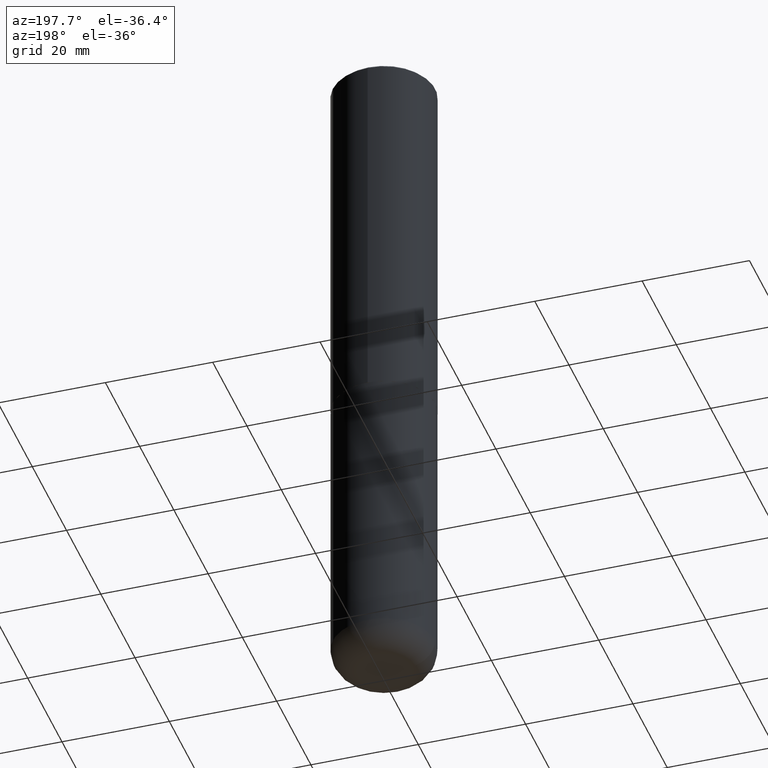
[diagram: clean part render]
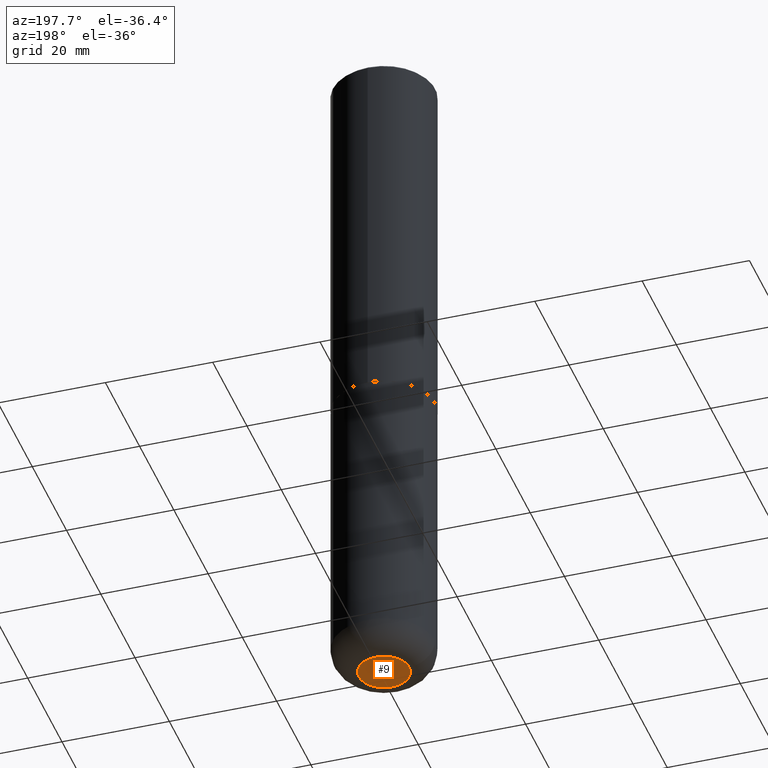
[diagram: same view with one face highlighted and labeled with its STEP entity id]
A machine part, auxiliary view. The second image highlights one B-rep face of the part: STEP entity #9.
In plain terms, the highlighted planar face has unit normal (0, -0, -1).
Its self-contained STEP definition (entity closure, byte-faithful):
#6 = CIRCLE ( 'NONE', #240, 0.1850000000000000810 ) ;
#9 = ADVANCED_FACE ( 'NONE', ( #194 ), #100, .T. ) ;
#31 = CIRCLE ( 'NONE', #81, 0.1850000000000000810 ) ;
#49 = DIRECTION ( 'NONE',  ( 1.000000000000000000, -6.982962677686272233E-15, 0.000000000000000000 ) ) ;
#50 = CARTESIAN_POINT ( 'NONE',  ( 1.222734403092568523E-28, -1.745740669421572989E-14, -5.000000000000000000 ) ) ;
#64 = EDGE_CURVE ( 'NONE', #378, #393, #31, .T. ) ;
#74 = DIRECTION ( 'NONE',  ( -1.000000000000000000, 6.982962677686265922E-15, -4.876176775795935793E-29 ) ) ;
#81 = AXIS2_PLACEMENT_3D ( 'NONE', #338, #242, #49 ) ;
#100 = PLANE ( 'NONE',  #224 ) ;
#194 = FACE_OUTER_BOUND ( 'NONE', #366, .T. ) ;
#200 = CARTESIAN_POINT ( 'NONE',  ( -0.1850000000000000810, -1.513619630689734772E-14, -5.000000000000000000 ) ) ;
#224 = AXIS2_PLACEMENT_3D ( 'NONE', #301, #369, #74 ) ;
#240 = AXIS2_PLACEMENT_3D ( 'NONE', #50, #275, #243 ) ;
#242 = DIRECTION ( 'NONE',  ( -2.445468806185136597E-29, 3.491481338843145583E-15, 1.000000000000000000 ) ) ;
#243 = DIRECTION ( 'NONE',  ( 1.000000000000000000, -6.982962677686272233E-15, 0.000000000000000000 ) ) ;
#275 = DIRECTION ( 'NONE',  ( -2.445468806185136597E-29, 3.491481338843145583E-15, 1.000000000000000000 ) ) ;
#301 = CARTESIAN_POINT ( 'NONE',  ( 1.222734403092568523E-28, -1.745740669421572989E-14, -5.000000000000000000 ) ) ;
#330 = ORIENTED_EDGE ( 'NONE', *, *, #64, .F. ) ;
#338 = CARTESIAN_POINT ( 'NONE',  ( 1.222734403092568523E-28, -1.745740669421572989E-14, -5.000000000000000000 ) ) ;
#366 = EDGE_LOOP ( 'NONE', ( #367, #330 ) ) ;
#367 = ORIENTED_EDGE ( 'NONE', *, *, #390, .F. ) ;
#369 = DIRECTION ( 'NONE',  ( 2.438088387897960049E-29, -3.491481338843145188E-15, -1.000000000000000000 ) ) ;
#378 = VERTEX_POINT ( 'NONE', #200 ) ;
#383 = CARTESIAN_POINT ( 'NONE',  ( 0.1850000000000000810, -1.874925478958768986E-14, -5.000000000000000000 ) ) ;
#390 = EDGE_CURVE ( 'NONE', #393, #378, #6, .T. ) ;
#393 = VERTEX_POINT ( 'NONE', #383 ) ;